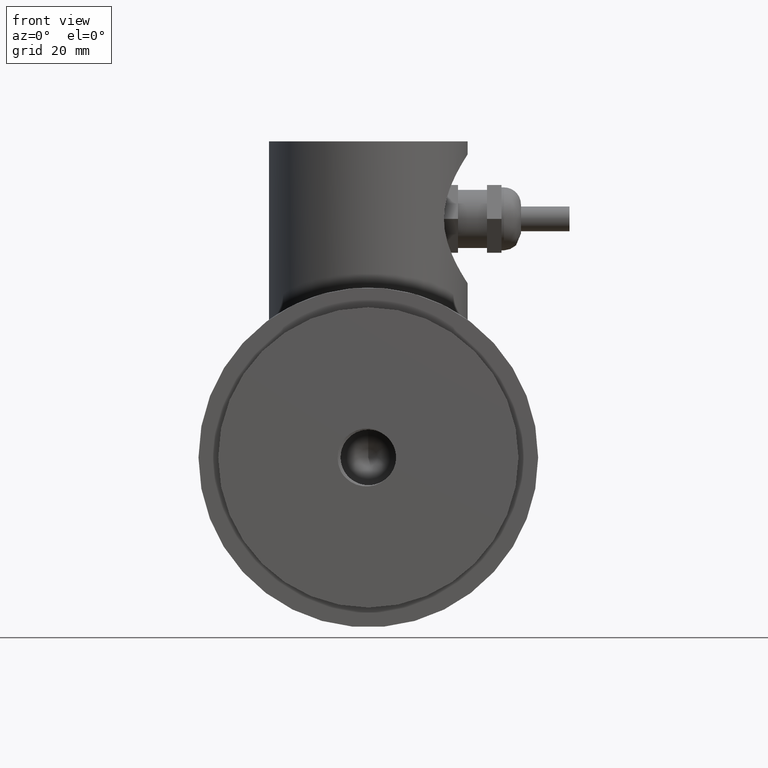
[diagram: clean part render]
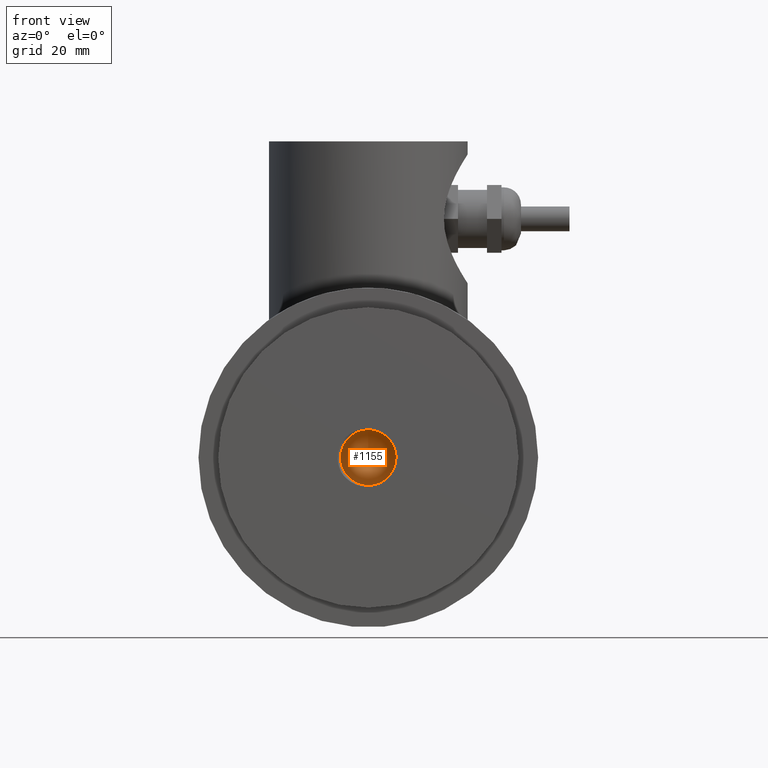
[diagram: same view with one face highlighted and labeled with its STEP entity id]
A machine part, front view. The second image highlights one B-rep face of the part: STEP entity #1155.
In plain terms, the highlighted conical surface has half-angle 59 deg.
Its self-contained STEP definition (entity closure, byte-faithful):
#16=CONICAL_SURFACE('',#1254,0.118567342698779,1.02974425867665);
#182=FACE_OUTER_BOUND('',#257,.T.);
#257=EDGE_LOOP('',(#1002,#1003,#1004,#1005,#1006));
#345=LINE('',#4801,#420);
#420=VECTOR('',#1491,0.125);
#438=CIRCLE('',#1222,0.22575);
#442=CIRCLE('',#1251,0.22575);
#443=CIRCLE('',#1252,0.22575);
#497=VERTEX_POINT('',#1764);
#498=VERTEX_POINT('',#1793);
#547=VERTEX_POINT('',#3166);
#548=VERTEX_POINT('',#4800);
#624=EDGE_CURVE('',#497,#498,#438,.T.);
#697=EDGE_CURVE('',#498,#547,#442,.T.);
#698=EDGE_CURVE('',#547,#497,#443,.T.);
#707=EDGE_CURVE('',#547,#548,#345,.T.);
#1002=ORIENTED_EDGE('',*,*,#697,.F.);
#1003=ORIENTED_EDGE('',*,*,#624,.F.);
#1004=ORIENTED_EDGE('',*,*,#698,.F.);
#1005=ORIENTED_EDGE('',*,*,#707,.T.);
#1006=ORIENTED_EDGE('',*,*,#707,.F.);
#1155=ADVANCED_FACE('',(#182),#16,.F.);
#1222=AXIS2_PLACEMENT_3D('',#1794,#1403,#1404);
#1251=AXIS2_PLACEMENT_3D('',#3167,#1483,#1484);
#1252=AXIS2_PLACEMENT_3D('',#3168,#1485,#1486);
#1254=AXIS2_PLACEMENT_3D('',#4799,#1489,#1490);
#1403=DIRECTION('center_axis',(0.,1.,0.));
#1404=DIRECTION('ref_axis',(0.,0.,-1.));
#1483=DIRECTION('center_axis',(0.,1.,0.));
#1484=DIRECTION('ref_axis',(0.,0.,-1.));
#1485=DIRECTION('center_axis',(0.,1.,0.));
#1486=DIRECTION('ref_axis',(0.,0.,-1.));
#1489=DIRECTION('center_axis',(0.,-1.,0.));
#1490=DIRECTION('ref_axis',(0.,0.,-1.));
#1491=DIRECTION('',(-1.04972719113862E-16,0.515038074910054,-0.857167300702112));
#1764=CARTESIAN_POINT('',(-0.218134118238582,0.63,-0.0581426604162222));
#1793=CARTESIAN_POINT('',(-0.0121101935251244,0.63,0.225424944743886));
#1794=CARTESIAN_POINT('Origin',(0.,0.63,0.));
#3166=CARTESIAN_POINT('',(2.76464014907515E-17,0.63,0.22575));
#3167=CARTESIAN_POINT('Origin',(0.,0.63,0.));
#3168=CARTESIAN_POINT('Origin',(0.,0.63,0.));
#4799=CARTESIAN_POINT('Origin',(0.,0.694401837815031,0.));
#4800=CARTESIAN_POINT('',(0.,0.765644284745472,0.));
#4801=CARTESIAN_POINT('',(1.45203116719467E-17,0.694401837815031,0.118567342698779));